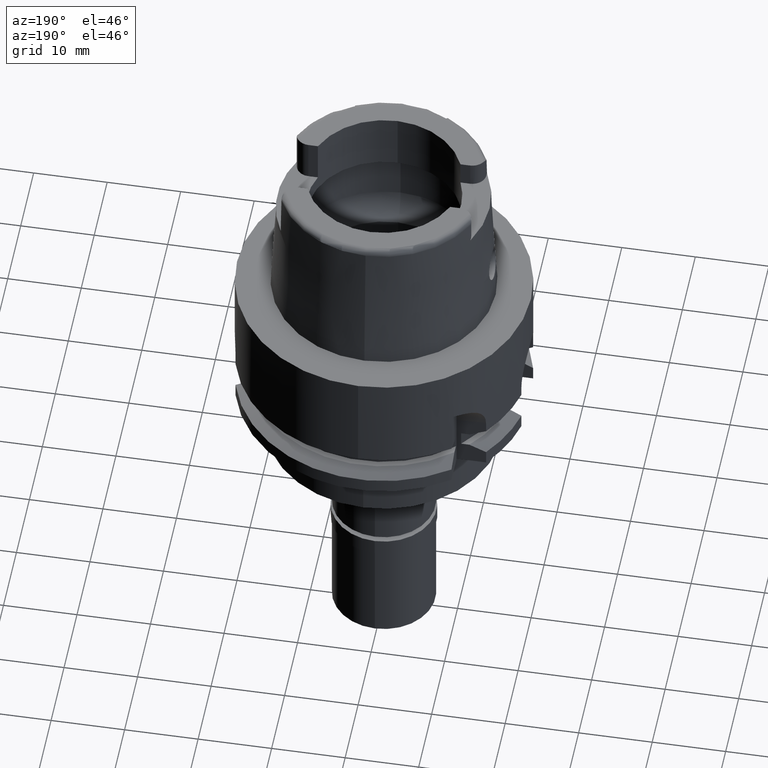
[diagram: clean part render]
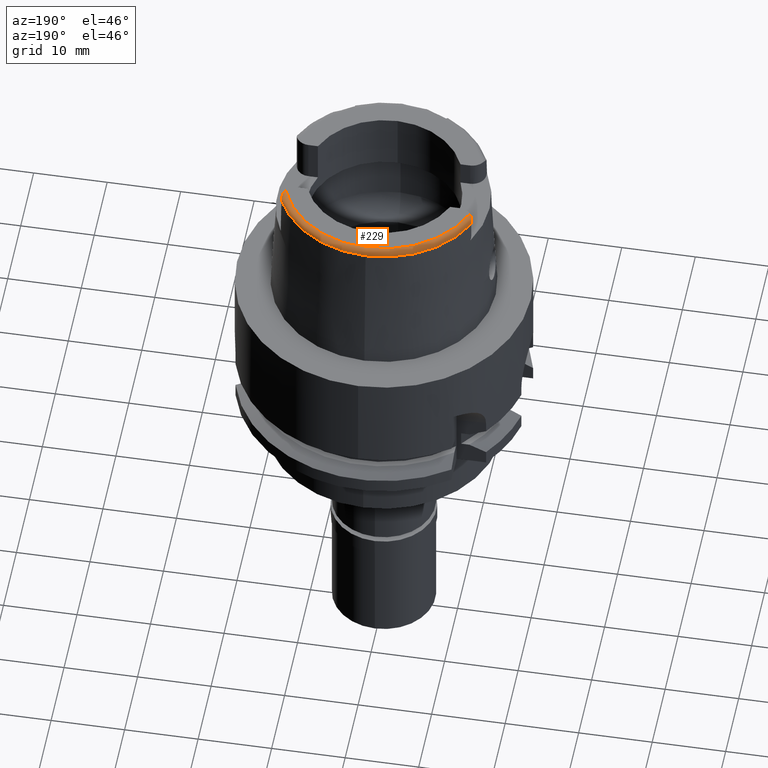
[diagram: same view with one face highlighted and labeled with its STEP entity id]
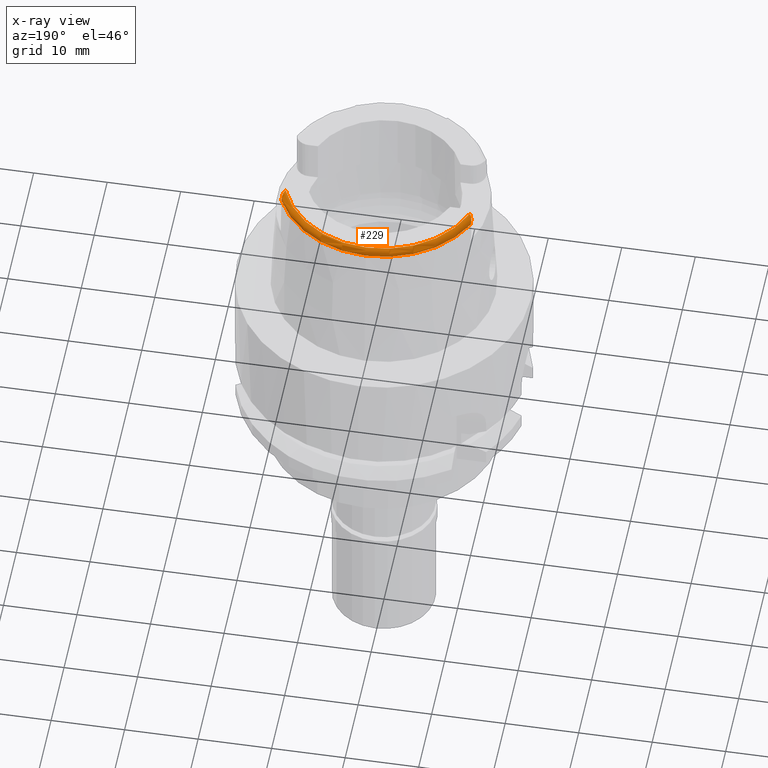
[diagram: x-ray of the same camera — body ghosted, the highlighted face saturated]
A machine part, auxiliary view. The second image highlights one B-rep face of the part: STEP entity #229.
The next image is the same camera in x-ray: the body ghosted, the highlighted face saturated — about 0% of this face is hidden behind the body in this view.
In plain terms, the highlighted toroidal blend (fillet) surface has major radius 13.439 mm and minor (blend) radius 0.8 mm.
Its self-contained STEP definition (entity closure, byte-faithful):
#89 = B_SPLINE_CURVE_WITH_KNOTS ( 'NONE', 3,
 ( #1336, #494, #2641, #3079, #2995, #2966, #164, #138, #5141, #983, #4214, #1366, #2563, #4680 ),
 .UNSPECIFIED., .F., .F.,
 ( 4, 2, 2, 2, 2, 2, 4 ),
 ( 0.0000000000000000000, 0.2499999999999998335, 0.3749999999999988898, 0.4999999999999978906, 0.6249999999999968914, 0.7499999999999960032, 1.000000000000000000 ),
 .UNSPECIFIED. ) ;
#138 = CARTESIAN_POINT ( 'NONE',  ( -12.81423148230513931, 5.409158601877005701, 19.84860990114145807 ) ) ;
#164 = CARTESIAN_POINT ( 'NONE',  ( -12.78290592583124763, 5.306217048409444637, 19.89319005424437492 ) ) ;
#229 = ADVANCED_FACE ( 'NONE', ( #1901 ), #5009, .T. ) ;
#239 = ORIENTED_EDGE ( 'NONE', *, *, #3181, .F. ) ;
#328 = CARTESIAN_POINT ( 'NONE',  ( 0.0000000000000000000, 0.0000000000000000000, 19.23995141520000018 ) ) ;
#342 = CIRCLE ( 'NONE', #3410, 14.23797715756000493 ) ;
#445 = VERTEX_POINT ( 'NONE', #3921 ) ;
#482 = CARTESIAN_POINT ( 'NONE',  ( -12.87999998840999893, 5.975919465414999188, 19.45434362010000129 ) ) ;
#494 = CARTESIAN_POINT ( 'NONE',  ( -12.59470074829189024, 4.905014275219031106, 19.99999999999999645 ) ) ;
#519 = CARTESIAN_POINT ( 'NONE',  ( 12.54148453352999937, 4.828791175991000273, 20.00000000000000000 ) ) ;
#548 = CARTESIAN_POINT ( 'NONE',  ( 12.73809691583544179, 5.158969428075363517, 19.95696757540271804 ) ) ;
#795 = CARTESIAN_POINT ( 'NONE',  ( 12.87997705758999878, 6.068458167862999630, 19.23995141520000018 ) ) ;
#983 = CARTESIAN_POINT ( 'NONE',  ( -12.84901608882436008, 5.561192138032312826, 19.77102960749544636 ) ) ;
#1150 = EDGE_CURVE ( 'NONE', #445, #1598, #89, .T. ) ;
#1154 = DIRECTION ( 'NONE',  ( -0.001046041333563015692, -0.9999994528986146936, 0.0000000000000000000 ) ) ;
#1157 = AXIS2_PLACEMENT_3D ( 'NONE', #3599, #3150, #1154 ) ;
#1189 = ORIENTED_EDGE ( 'NONE', *, *, #3092, .F. ) ;
#1224 = CARTESIAN_POINT ( 'NONE',  ( 12.88000354652338331, 6.055720624199700808, 19.30906174885709348 ) ) ;
#1262 = CARTESIAN_POINT ( 'NONE',  ( 0.0000000000000000000, 0.0000000000000000000, 20.00000000000000000 ) ) ;
#1269 = CARTESIAN_POINT ( 'NONE',  ( -12.88000000000000078, 5.930851298460999566, 19.50292413842000272 ) ) ;
#1277 = ORIENTED_EDGE ( 'NONE', *, *, #4375, .F. ) ;
#1334 = B_SPLINE_CURVE_WITH_KNOTS ( 'NONE', 3,
 ( #2959, #1269, #482, #2521, #4175, #3382, #4230 ),
 .UNSPECIFIED., .F., .F.,
 ( 4, 1, 1, 1, 4 ),
 ( 0.0000000000000000000, 0.2500000000000000000, 0.5000000000000000000, 0.7500000000000000000, 1.000000000000000000 ),
 .UNSPECIFIED. ) ;
#1336 = CARTESIAN_POINT ( 'NONE',  ( -12.54148453352999937, 4.828791175990000184, 20.00000000000000000 ) ) ;
#1366 = CARTESIAN_POINT ( 'NONE',  ( -12.87648460709401910, 5.755249260113388665, 19.65151642502339513 ) ) ;
#1485 = CIRCLE ( 'NONE', #2172, 14.23797715755999782 ) ;
#1501 = CARTESIAN_POINT ( 'NONE',  ( 12.88000000000000078, 5.904999999999999361, 19.52698079989999869 ) ) ;
#1536 = EDGE_LOOP ( 'NONE', ( #3242, #239, #3459, #1189, #1277, #2108, #3098 ) ) ;
#1598 = VERTEX_POINT ( 'NONE', #3721 ) ;
#1722 = CARTESIAN_POINT ( 'NONE',  ( 12.87999904406999896, 6.024675813715000494, 19.38122808405999820 ) ) ;
#1746 = CARTESIAN_POINT ( 'NONE',  ( 12.64793097547543965, 4.981257444843492088, 19.99999999999999645 ) ) ;
#1831 = CARTESIAN_POINT ( 'NONE',  ( 12.88000000000000078, 5.904999999999999361, 19.52698079989999869 ) ) ;
#1901 = FACE_OUTER_BOUND ( 'NONE', #1536, .T. ) ;
#1990 = DIRECTION ( 'NONE',  ( 0.0000000000000000000, 0.0000000000000000000, -1.000000000000000000 ) ) ;
#2033 = DIRECTION ( 'NONE',  ( 0.0000000000000000000, 1.000000000000000000, 0.0000000000000000000 ) ) ;
#2052 = EDGE_CURVE ( 'NONE', #1598, #4887, #1334, .T. ) ;
#2108 = ORIENTED_EDGE ( 'NONE', *, *, #2052, .F. ) ;
#2146 = CARTESIAN_POINT ( 'NONE',  ( 12.87421052474008931, 5.751993272757885300, 19.65111178856732721 ) ) ;
#2153 = CARTESIAN_POINT ( 'NONE',  ( 0.0000000000000000000, 14.23797715755999782, 19.23995141520000018 ) ) ;
#2172 = AXIS2_PLACEMENT_3D ( 'NONE', #3267, #4943, #2033 ) ;
#2226 = VERTEX_POINT ( 'NONE', #3573 ) ;
#2254 = CARTESIAN_POINT ( 'NONE',  ( 12.88000000000000256, 5.871137192160016838, 19.55849279943487673 ) ) ;
#2383 = AXIS2_PLACEMENT_3D ( 'NONE', #1262, #3313, #3542 ) ;
#2478 = EDGE_CURVE ( 'NONE', #445, #2536, #4846, .T. ) ;
#2491 = B_SPLINE_CURVE_WITH_KNOTS ( 'NONE', 3,
 ( #795, #3776, #1224, #1722, #2533, #5000, #3393 ),
 .UNSPECIFIED., .F., .F.,
 ( 4, 1, 1, 1, 4 ),
 ( 0.0006801143063795130148, 0.2500000000000000000, 0.5000000000000000000, 0.7500000000000000000, 1.000000000000000000 ),
 .UNSPECIFIED. ) ;
#2521 = CARTESIAN_POINT ( 'NONE',  ( -12.88000004057000147, 6.024674389705999999, 19.38121096807999777 ) ) ;
#2533 = CARTESIAN_POINT ( 'NONE',  ( 12.88000027312000206, 5.975910239319000894, 19.45435037980000104 ) ) ;
#2536 = VERTEX_POINT ( 'NONE', #4689 ) ;
#2563 = CARTESIAN_POINT ( 'NONE',  ( -12.87999999999999723, 5.837252780098320493, 19.59002490338865599 ) ) ;
#2641 = CARTESIAN_POINT ( 'NONE',  ( -12.64383385982299757, 4.987451185600471959, 19.98924166480774645 ) ) ;
#2820 = VERTEX_POINT ( 'NONE', #2153 ) ;
#2959 = CARTESIAN_POINT ( 'NONE',  ( -12.88000000000000078, 5.904999999999999361, 19.52698079989999869 ) ) ;
#2966 = CARTESIAN_POINT ( 'NONE',  ( -12.76646969146459476, 5.259599148515635036, 19.91124373466387709 ) ) ;
#2995 = CARTESIAN_POINT ( 'NONE',  ( -12.72921836697246967, 5.165566927109135342, 19.94351874024065552 ) ) ;
#3050 = CARTESIAN_POINT ( 'NONE',  ( 12.85753755092997430, 5.611069543524014769, 19.74229585311454827 ) ) ;
#3079 = CARTESIAN_POINT ( 'NONE',  ( -12.70894693776321205, 5.119938371663489640, 19.95696665923097513 ) ) ;
#3092 = EDGE_CURVE ( 'NONE', #2820, #2226, #1485, .T. ) ;
#3098 = ORIENTED_EDGE ( 'NONE', *, *, #1150, .F. ) ;
#3150 = DIRECTION ( 'NONE',  ( 0.0000000000000000000, 0.0000000000000000000, 1.000000000000000000 ) ) ;
#3181 = EDGE_CURVE ( 'NONE', #5055, #2536, #3413, .T. ) ;
#3242 = ORIENTED_EDGE ( 'NONE', *, *, #2478, .T. ) ;
#3267 = CARTESIAN_POINT ( 'NONE',  ( 0.0000000000000000000, 0.0000000000000000000, 19.23995141520000018 ) ) ;
#3313 = DIRECTION ( 'NONE',  ( 0.0000000000000000000, 0.0000000000000000000, -1.000000000000000000 ) ) ;
#3382 = CARTESIAN_POINT ( 'NONE',  ( -12.88000032454999833, 6.065738033001999874, 19.26270970114000036 ) ) ;
#3391 = CARTESIAN_POINT ( 'NONE',  ( 12.81368372932894495, 5.407357822918783974, 19.84938651390948294 ) ) ;
#3393 = CARTESIAN_POINT ( 'NONE',  ( 12.88000000000000078, 5.904999999999999361, 19.52698079989999869 ) ) ;
#3410 = AXIS2_PLACEMENT_3D ( 'NONE', #328, #1990, #5322 ) ;
#3413 = B_SPLINE_CURVE_WITH_KNOTS ( 'NONE', 3,
 ( #1831, #2254, #4269, #2146, #4759, #3050, #4732, #3906, #3391, #548, #1746, #519 ),
 .UNSPECIFIED., .F., .F.,
 ( 4, 2, 2, 2, 2, 4 ),
 ( 0.0000000000000000000, 0.1250000000000006384, 0.2500000000000012768, 0.3750000000000018874, 0.5000000000000025535, 1.000000000000000000 ),
 .UNSPECIFIED. ) ;
#3459 = ORIENTED_EDGE ( 'NONE', *, *, #5144, .F. ) ;
#3542 = DIRECTION ( 'NONE',  ( -0.9332173178785413414, 0.3593124512337161347, 0.0000000000000000000 ) ) ;
#3573 = CARTESIAN_POINT ( 'NONE',  ( 12.87997705758999878, 6.068458167862999630, 19.23995141520000018 ) ) ;
#3599 = CARTESIAN_POINT ( 'NONE',  ( 0.0000000000000000000, 0.0000000000000000000, 19.19999999999999929 ) ) ;
#3721 = CARTESIAN_POINT ( 'NONE',  ( -12.88000000000000078, 5.904999999999999361, 19.52698079989999869 ) ) ;
#3776 = CARTESIAN_POINT ( 'NONE',  ( 12.87999238296762172, 6.065736196782263612, 19.26293680975512501 ) ) ;
#3906 = CARTESIAN_POINT ( 'NONE',  ( 12.82737558691527724, 5.460294436620799274, 19.82415560574717261 ) ) ;
#3921 = CARTESIAN_POINT ( 'NONE',  ( -12.54148453352999937, 4.828791175990000184, 20.00000000000000000 ) ) ;
#4175 = CARTESIAN_POINT ( 'NONE',  ( -12.87999984930999986, 6.055760217745000062, 19.30904427807999824 ) ) ;
#4214 = CARTESIAN_POINT ( 'NONE',  ( -12.85771850793781645, 5.612447634679474717, 19.74142483469466569 ) ) ;
#4230 = CARTESIAN_POINT ( 'NONE',  ( -12.88000032454999833, 6.068406996192999614, 19.23995952503999973 ) ) ;
#4269 = CARTESIAN_POINT ( 'NONE',  ( 12.87909462434554442, 5.833729091604380024, 19.58962139707530525 ) ) ;
#4375 = EDGE_CURVE ( 'NONE', #4887, #2820, #342, .T. ) ;
#4553 = CARTESIAN_POINT ( 'NONE',  ( -12.88000032454999833, 6.068406996192999614, 19.23995952503999973 ) ) ;
#4680 = CARTESIAN_POINT ( 'NONE',  ( -12.88000000000000078, 5.904999999999999361, 19.52698079989999869 ) ) ;
#4689 = CARTESIAN_POINT ( 'NONE',  ( 12.54148453352999937, 4.828791175991000273, 20.00000000000000000 ) ) ;
#4732 = CARTESIAN_POINT ( 'NONE',  ( 12.84902468619525706, 5.561238042251779312, 19.77100535513648438 ) ) ;
#4759 = CARTESIAN_POINT ( 'NONE',  ( 12.87041160504735871, 5.709037518735630812, 19.68060809563752755 ) ) ;
#4846 = CIRCLE ( 'NONE', #2383, 13.43897535253999465 ) ;
#4887 = VERTEX_POINT ( 'NONE', #4553 ) ;
#4943 = DIRECTION ( 'NONE',  ( 0.0000000000000000000, 0.0000000000000000000, -1.000000000000000000 ) ) ;
#5000 = CARTESIAN_POINT ( 'NONE',  ( 12.88000000000000078, 5.930847097515999700, 19.50292804772999844 ) ) ;
#5009 = TOROIDAL_SURFACE ( 'NONE', #1157, 13.43897535253999997, 0.8000000000000000444 ) ;
#5055 = VERTEX_POINT ( 'NONE', #1501 ) ;
#5141 = CARTESIAN_POINT ( 'NONE',  ( -12.82736554180783983, 5.460253421266135554, 19.82417781179167449 ) ) ;
#5144 = EDGE_CURVE ( 'NONE', #2226, #5055, #2491, .T. ) ;
#5322 = DIRECTION ( 'NONE',  ( -0.9046229552921946082, 0.4262127505816972750, 0.0000000000000000000 ) ) ;